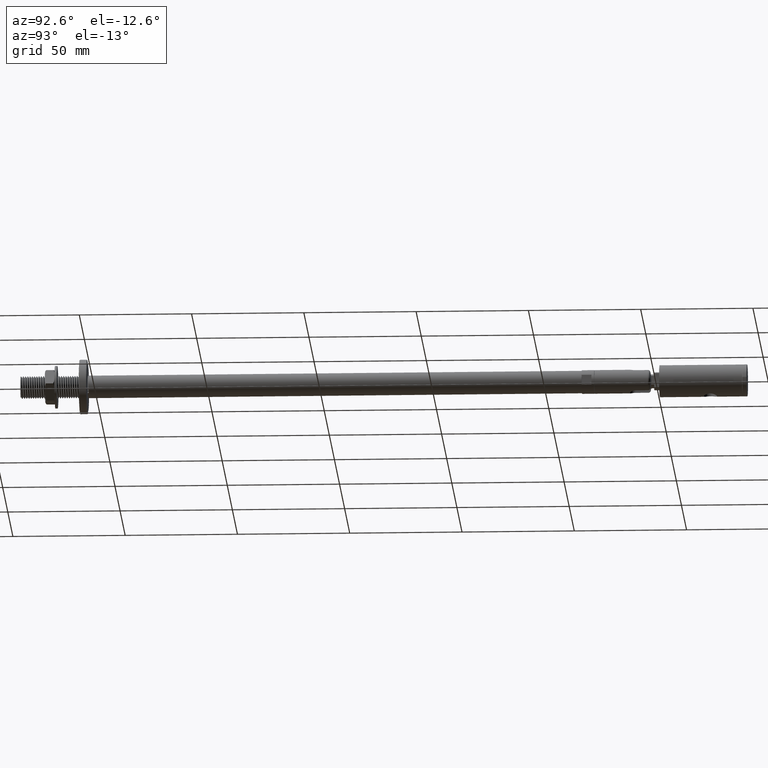
[diagram: clean part render]
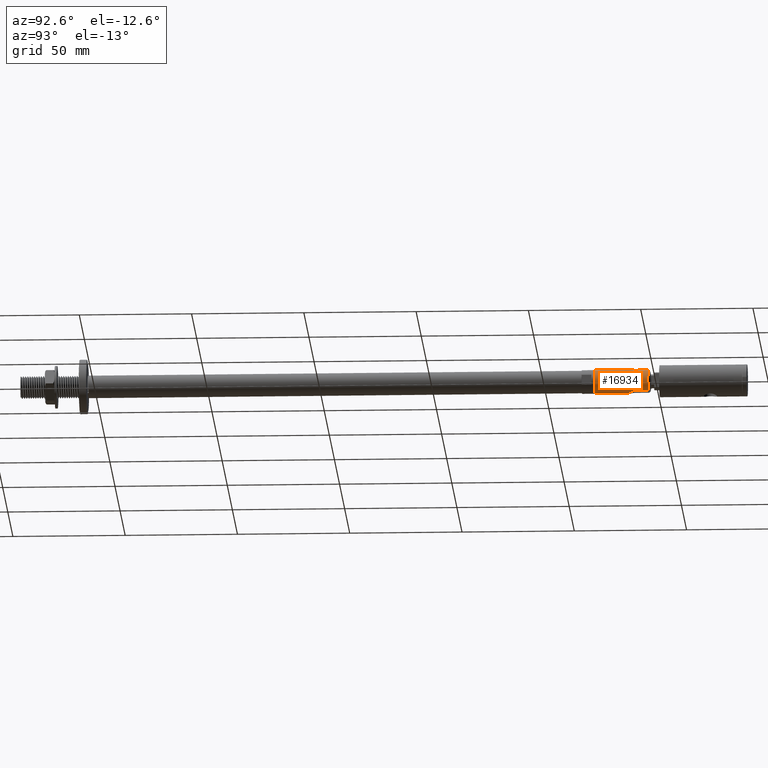
[diagram: same view with one face highlighted and labeled with its STEP entity id]
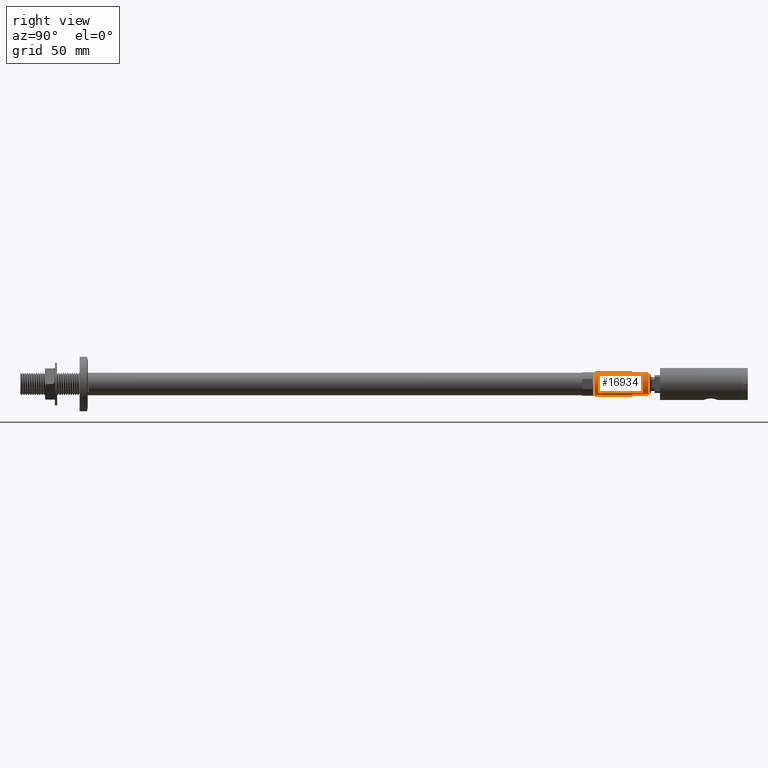
[diagram: same view with one face highlighted and labeled with its STEP entity id]
A machine part, auxiliary view. The second image highlights one B-rep face of the part: STEP entity #16934.
A second angle (right view) of the same face is appended — the face is thin or edge-on in the first view.
In plain terms, the highlighted cylindrical surface (edge-blend (fillet) strip) has radius 5.25 mm, axis along (0, -1, 0).
Its self-contained STEP definition (entity closure, byte-faithful):
#235 = CARTESIAN_POINT ( 'NONE',  ( -2.500000000000000000, 0.000000000000000000, -4.616546328154846890 ) ) ;
#323 = CARTESIAN_POINT ( 'NONE',  ( -2.500000000000000000, 23.83932157195409829, 4.616546328154846890 ) ) ;
#501 = VERTEX_POINT ( 'NONE', #8568 ) ;
#538 = CARTESIAN_POINT ( 'NONE',  ( 0.000000000000000000, 23.83932157195409829, 0.000000000000000000 ) ) ;
#753 = DIRECTION ( 'NONE',  ( 0.000000000000000000, 0.000000000000000000, -1.000000000000000000 ) ) ;
#805 = CIRCLE ( 'NONE', #17415, 5.250000000000000000 ) ;
#957 = VECTOR ( 'NONE', #3979, 1000.000000000000000 ) ;
#958 = CARTESIAN_POINT ( 'NONE',  ( -1.613678890258018284E-14, 15.49999999999979750, -5.250000000000097700 ) ) ;
#1411 = CARTESIAN_POINT ( 'NONE',  ( -0.3304850069742933938, 15.51642498996065811, 5.242119398040792078 ) ) ;
#1561 = DIRECTION ( 'NONE',  ( 0.000000000000000000, 1.000000000000000000, 0.000000000000000000 ) ) ;
#2239 = ORIENTED_EDGE ( 'NONE', *, *, #3116, .F. ) ;
#2929 = AXIS2_PLACEMENT_3D ( 'NONE', #538, #6782, #753 ) ;
#2939 = CARTESIAN_POINT ( 'NONE',  ( -1.984833185350453721, 16.47134786877652957, -4.861341638296718060 ) ) ;
#2994 = CARTESIAN_POINT ( 'NONE',  ( -2.368878950514956561, 17.18446805617676532, 4.685706966717124722 ) ) ;
#3033 = LINE ( 'NONE', #12860, #10941 ) ;
#3116 = EDGE_CURVE ( 'NONE', #7393, #501, #11680, .T. ) ;
#3134 = CARTESIAN_POINT ( 'NONE',  ( -2.483233616016457201, 17.66730845786378978, 4.625733053340318257 ) ) ;
#3382 = VECTOR ( 'NONE', #19746, 1000.000000000000000 ) ;
#3506 = ORIENTED_EDGE ( 'NONE', *, *, #14949, .F. ) ;
#3598 = CARTESIAN_POINT ( 'NONE',  ( 0.000000000000000000, 0.000000000000000000, 0.000000000000000000 ) ) ;
#3979 = DIRECTION ( 'NONE',  ( -0.000000000000000000, -1.000000000000000000, -0.000000000000000000 ) ) ;
#4279 = CARTESIAN_POINT ( 'NONE',  ( -2.500000000000000000, 23.83932157195419421, -4.616546328154995216 ) ) ;
#4385 = LINE ( 'NONE', #11958, #957 ) ;
#4484 = CARTESIAN_POINT ( 'NONE',  ( -0.6548455624073576953, 15.58162400364994937, 5.211546163332504200 ) ) ;
#4653 = EDGE_CURVE ( 'NONE', #8892, #20240, #5682, .T. ) ;
#4719 = ORIENTED_EDGE ( 'NONE', *, *, #8093, .T. ) ;
#5181 = DIRECTION ( 'NONE',  ( 0.000000000000000000, 0.000000000000000000, -1.000000000000000000 ) ) ;
#5355 = CARTESIAN_POINT ( 'NONE',  ( -1.613678890258018284E-14, 15.49999999999979750, -5.250000000000097700 ) ) ;
#5447 = VERTEX_POINT ( 'NONE', #19571 ) ;
#5682 = B_SPLINE_CURVE_WITH_KNOTS ( 'NONE', 3,
 ( #14018, #7723, #3134, #15630, #2994, #14158, #17504, #20490, #12555, #6267, #19139, #15838, #4484, #1411, #12424, #18928 ),
 .UNSPECIFIED., .F., .F.,
 ( 4, 2, 2, 2, 2, 2, 2, 4 ),
 ( 0.000000000000000000, 0.0004962905162303682741, 0.0009925810324607365481, 0.001985162064921472229, 0.002481452581151836600, 0.002977743097382200537, 0.003474033613612560571, 0.003970324129842920172 ),
 .UNSPECIFIED. ) ;
#5889 = CARTESIAN_POINT ( 'NONE',  ( -1.261227532154441278, 15.83540080063007238, -5.098156673809599582 ) ) ;
#6097 = CARTESIAN_POINT ( 'NONE',  ( -0.1659745986307280541, 15.49999999999999645, -5.250000000000002665 ) ) ;
#6161 = CARTESIAN_POINT ( 'NONE',  ( -2.430951096071722883, 17.33257951571436450, -4.655363032725009731 ) ) ;
#6267 = CARTESIAN_POINT ( 'NONE',  ( -1.258286830783308829, 15.83361836660112587, 5.098907963185506098 ) ) ;
#6651 = CYLINDRICAL_SURFACE ( 'NONE', #18243, 5.250000000000000000 ) ;
#6782 = DIRECTION ( 'NONE',  ( -0.000000000000000000, -1.000000000000000000, -0.000000000000000000 ) ) ;
#7393 = VERTEX_POINT ( 'NONE', #5355 ) ;
#7723 = CARTESIAN_POINT ( 'NONE',  ( -2.499999999999999556, 17.83194487790412097, 4.616546328154847778 ) ) ;
#7743 = CARTESIAN_POINT ( 'NONE',  ( -1.118594795608481185, 15.75816660717493178, -5.131771243590111276 ) ) ;
#8093 = EDGE_CURVE ( 'NONE', #7393, #18083, #12074, .T. ) ;
#8568 = CARTESIAN_POINT ( 'NONE',  ( -2.500000000000000000, 18.00000000000000355, -4.616546328154846890 ) ) ;
#8892 = VERTEX_POINT ( 'NONE', #18031 ) ;
#9157 = LINE ( 'NONE', #235, #9424 ) ;
#9199 = CARTESIAN_POINT ( 'NONE',  ( 0.000000000000000000, 0.000000000000000000, -5.250000000000000000 ) ) ;
#9266 = CARTESIAN_POINT ( 'NONE',  ( -1.656009651057984255, 16.12026276276160530, -4.983437210541668883 ) ) ;
#9424 = VECTOR ( 'NONE', #1561, 1000.000000000000000 ) ;
#9911 = VERTEX_POINT ( 'NONE', #323 ) ;
#10540 = CARTESIAN_POINT ( 'NONE',  ( 0.000000000000000000, 0.000000000000000000, 0.000000000000000000 ) ) ;
#10824 = CARTESIAN_POINT ( 'NONE',  ( -2.500000000000000888, 17.66432951242870786, -4.616546328154848666 ) ) ;
#10941 = VECTOR ( 'NONE', #16200, 1000.000000000000000 ) ;
#11578 = DIRECTION ( 'NONE',  ( 0.000000000000000000, 0.000000000000000000, -1.000000000000000000 ) ) ;
#11680 = B_SPLINE_CURVE_WITH_KNOTS ( 'NONE', 3,
 ( #958, #6097, #20369, #15729, #13976, #7743, #5889, #15512, #9266, #18953, #2939, #20512, #18807, #6161, #10824, #14036 ),
 .UNSPECIFIED., .F., .F.,
 ( 4, 2, 2, 2, 2, 2, 2, 4 ),
 ( 0.003970324129842919304, 0.004465704614106297959, 0.004961085098369677482, 0.005456465582633056137, 0.005951846066896434792, 0.006447226551159814315, 0.006942607035423192970, 0.007933368003949940739 ),
 .UNSPECIFIED. ) ;
#11702 = ORIENTED_EDGE ( 'NONE', *, *, #17795, .T. ) ;
#11958 = CARTESIAN_POINT ( 'NONE',  ( 6.429395695523604153E-16, 0.000000000000000000, 5.250000000000000000 ) ) ;
#12074 = LINE ( 'NONE', #19885, #3382 ) ;
#12126 = ORIENTED_EDGE ( 'NONE', *, *, #15636, .F. ) ;
#12424 = CARTESIAN_POINT ( 'NONE',  ( -0.1662795000049619998, 15.49999999999999467, 5.250000000000007105 ) ) ;
#12525 = CARTESIAN_POINT ( 'NONE',  ( 1.677972847537197759E-14, 15.49999999999979750, 5.250000000000097700 ) ) ;
#12555 = CARTESIAN_POINT ( 'NONE',  ( -1.528575883139089209, 16.01506904413875887, 5.024500366707601806 ) ) ;
#12649 = ORIENTED_EDGE ( 'NONE', *, *, #4653, .F. ) ;
#12860 = CARTESIAN_POINT ( 'NONE',  ( -2.500000000000000000, 0.000000000000000000, 4.616546328154846890 ) ) ;
#13897 = CIRCLE ( 'NONE', #2929, 5.250000000000000000 ) ;
#13976 = CARTESIAN_POINT ( 'NONE',  ( -0.8151336509130141517, 15.63090135091483468, -5.188630603969605737 ) ) ;
#14018 = CARTESIAN_POINT ( 'NONE',  ( -2.500000000000000000, 18.00000000000000355, 4.616546328154846002 ) ) ;
#14036 = CARTESIAN_POINT ( 'NONE',  ( -2.500000000000000000, 18.00000000000000355, -4.616546328154846890 ) ) ;
#14158 = CARTESIAN_POINT ( 'NONE',  ( -2.179500323050470811, 16.73252310625451855, 4.778287076176959580 ) ) ;
#14949 = EDGE_CURVE ( 'NONE', #9911, #8892, #3033, .T. ) ;
#15100 = ORIENTED_EDGE ( 'NONE', *, *, #15709, .F. ) ;
#15237 = DIRECTION ( 'NONE',  ( -0.000000000000000000, -1.000000000000000000, -0.000000000000000000 ) ) ;
#15512 = CARTESIAN_POINT ( 'NONE',  ( -1.529748948192002800, 16.01605122614448717, -5.024118282254033119 ) ) ;
#15630 = CARTESIAN_POINT ( 'NONE',  ( -2.418114702682477191, 17.34436737528248429, 4.660104801090865223 ) ) ;
#15636 = EDGE_CURVE ( 'NONE', #501, #16059, #9157, .T. ) ;
#15709 = EDGE_CURVE ( 'NONE', #5447, #18083, #805, .T. ) ;
#15729 = CARTESIAN_POINT ( 'NONE',  ( -0.6567444101646359167, 15.58218685932617653, -5.211284822571006003 ) ) ;
#15838 = CARTESIAN_POINT ( 'NONE',  ( -0.8151067300644406766, 15.63100235307663155, 5.188591470474664291 ) ) ;
#16059 = VERTEX_POINT ( 'NONE', #4279 ) ;
#16200 = DIRECTION ( 'NONE',  ( -0.000000000000000000, -1.000000000000000000, -0.000000000000000000 ) ) ;
#16393 = DIRECTION ( 'NONE',  ( -0.000000000000000000, -1.000000000000000000, -0.000000000000000000 ) ) ;
#16665 = FACE_OUTER_BOUND ( 'NONE', #16707, .T. ) ;
#16707 = EDGE_LOOP ( 'NONE', ( #17054, #12649, #3506, #11702, #12126, #2239, #4719, #15100 ) ) ;
#16934 = ADVANCED_FACE ( 'NONE', ( #16665 ), #6651, .T. ) ;
#17054 = ORIENTED_EDGE ( 'NONE', *, *, #19709, .F. ) ;
#17415 = AXIS2_PLACEMENT_3D ( 'NONE', #3598, #16393, #11578 ) ;
#17504 = CARTESIAN_POINT ( 'NONE',  ( -1.994812396087481288, 16.45925613374403795, 4.862243207395563260 ) ) ;
#17795 = EDGE_CURVE ( 'NONE', #9911, #16059, #13897, .T. ) ;
#18031 = CARTESIAN_POINT ( 'NONE',  ( -2.500000000000000000, 18.00000000000000355, 4.616546328154846002 ) ) ;
#18083 = VERTEX_POINT ( 'NONE', #9199 ) ;
#18243 = AXIS2_PLACEMENT_3D ( 'NONE', #10540, #15237, #5181 ) ;
#18807 = CARTESIAN_POINT ( 'NONE',  ( -2.243116609133355865, 16.88435166319571579, -4.747187054174165866 ) ) ;
#18928 = CARTESIAN_POINT ( 'NONE',  ( 1.677972847537197759E-14, 15.49999999999979750, 5.250000000000097700 ) ) ;
#18953 = CARTESIAN_POINT ( 'NONE',  ( -1.882863460808047673, 16.34754569400187307, -4.902228022416182718 ) ) ;
#19139 = CARTESIAN_POINT ( 'NONE',  ( -1.115705029839305862, 15.75684349210402324, 5.132356448578961228 ) ) ;
#19571 = CARTESIAN_POINT ( 'NONE',  ( 6.429395695523604153E-16, 0.000000000000000000, 5.250000000000000000 ) ) ;
#19709 = EDGE_CURVE ( 'NONE', #20240, #5447, #4385, .T. ) ;
#19746 = DIRECTION ( 'NONE',  ( -0.000000000000000000, -1.000000000000000000, -0.000000000000000000 ) ) ;
#19885 = CARTESIAN_POINT ( 'NONE',  ( 0.000000000000000000, 0.000000000000000000, -5.250000000000000000 ) ) ;
#20240 = VERTEX_POINT ( 'NONE', #12525 ) ;
#20369 = CARTESIAN_POINT ( 'NONE',  ( -0.3338287829934675210, 15.51691886013714772, -5.241885258748664178 ) ) ;
#20490 = CARTESIAN_POINT ( 'NONE',  ( -1.654113697175781272, 16.11859097587396406, 4.984070048933660679 ) ) ;
#20512 = CARTESIAN_POINT ( 'NONE',  ( -2.165816367958615540, 16.74080201229311982, -4.783455315793009532 ) ) ;